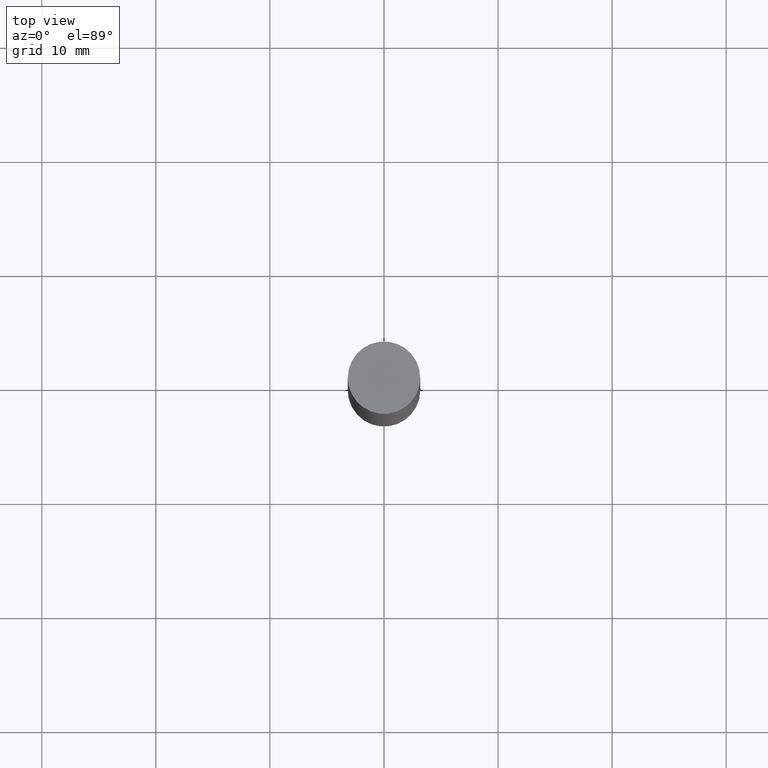
[diagram: clean part render]
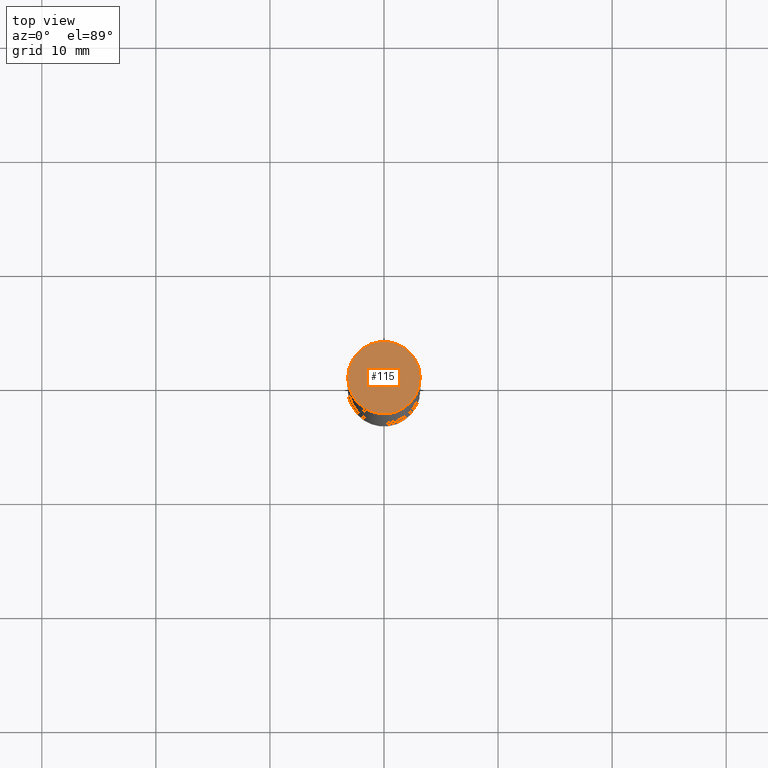
[diagram: same view with one face highlighted and labeled with its STEP entity id]
A machine part, top view. The second image highlights one B-rep face of the part: STEP entity #115.
In plain terms, the highlighted planar face has unit normal (0, 0, 1).
Its self-contained STEP definition (entity closure, byte-faithful):
#28 = CARTESIAN_POINT ( 'NONE',  ( 0.1250000000000000000, -8.711089938250227947E-16, 5.463695987328526437E-16 ) ) ;
#54 = PLANE ( 'NONE',  #391 ) ;
#60 = CIRCLE ( 'NONE', #431, 0.1250000000000000000 ) ;
#61 = DIRECTION ( 'NONE',  ( 2.445468806185136597E-29, 3.492890411551752677E-15, 1.000000000000000000 ) ) ;
#84 = EDGE_CURVE ( 'NONE', #667, #630, #60, .T. ) ;
#107 = DIRECTION ( 'NONE',  ( -1.000000000000000000, 6.982962677686265922E-15, -9.839502134516470631E-33 ) ) ;
#115 = ADVANCED_FACE ( 'NONE', ( #304 ), #54, .T. ) ;
#165 = CARTESIAN_POINT ( 'NONE',  ( 6.113672015462842613E-29, 1.761340885760521790E-18, 5.463695987328526437E-16 ) ) ;
#176 = DIRECTION ( 'NONE',  ( 1.000000000000000000, -6.982962677686266711E-15, 0.000000000000000000 ) ) ;
#218 = CARTESIAN_POINT ( 'NONE',  ( 8.728703347108443769E-16, 0.1250000000000000278, 0.000000000000000000 ) ) ;
#293 = ORIENTED_EDGE ( 'NONE', *, *, #84, .T. ) ;
#304 = FACE_OUTER_BOUND ( 'NONE', #441, .T. ) ;
#317 = CARTESIAN_POINT ( 'NONE',  ( 6.113672015462842613E-29, 1.761340885760521790E-18, 5.463695987328526437E-16 ) ) ;
#364 = DIRECTION ( 'NONE',  ( 2.438088387897959769E-29, 3.492890411551753071E-15, 1.000000000000000000 ) ) ;
#391 = AXIS2_PLACEMENT_3D ( 'NONE', #218, #364, #107 ) ;
#422 = DIRECTION ( 'NONE',  ( 1.000000000000000000, -6.982962677686266711E-15, 0.000000000000000000 ) ) ;
#431 = AXIS2_PLACEMENT_3D ( 'NONE', #317, #509, #422 ) ;
#432 = CIRCLE ( 'NONE', #550, 0.1250000000000000000 ) ;
#441 = EDGE_LOOP ( 'NONE', ( #293, #649 ) ) ;
#506 = CARTESIAN_POINT ( 'NONE',  ( -0.1250000000000000000, -1.389901228073636467E-17, 5.463695987328557991E-16 ) ) ;
#509 = DIRECTION ( 'NONE',  ( 2.445468806185136597E-29, 3.492890411551752677E-15, 1.000000000000000000 ) ) ;
#532 = EDGE_CURVE ( 'NONE', #630, #667, #432, .T. ) ;
#550 = AXIS2_PLACEMENT_3D ( 'NONE', #165, #61, #176 ) ;
#630 = VERTEX_POINT ( 'NONE', #506 ) ;
#649 = ORIENTED_EDGE ( 'NONE', *, *, #532, .T. ) ;
#667 = VERTEX_POINT ( 'NONE', #28 ) ;